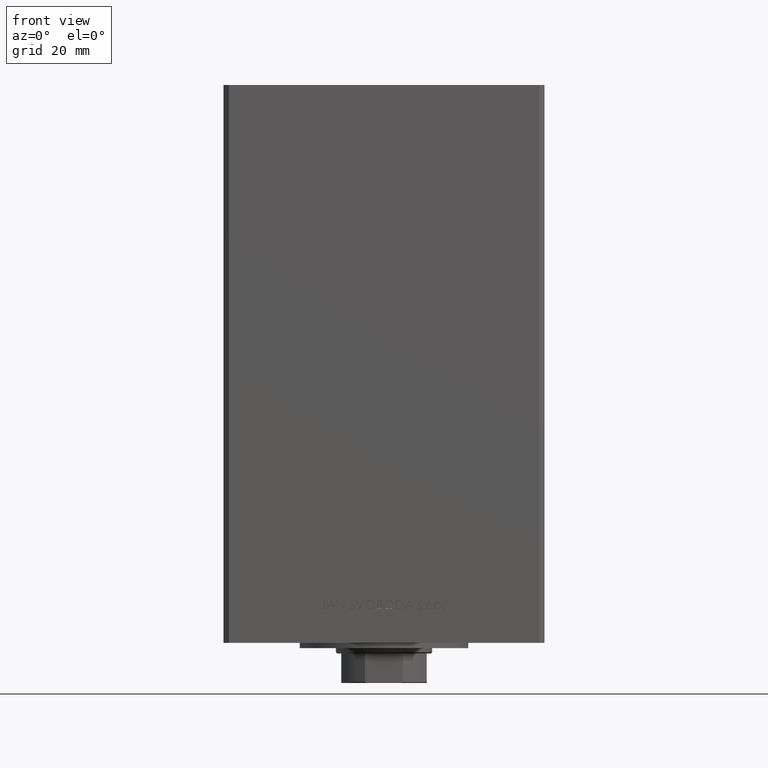
[diagram: clean part render]
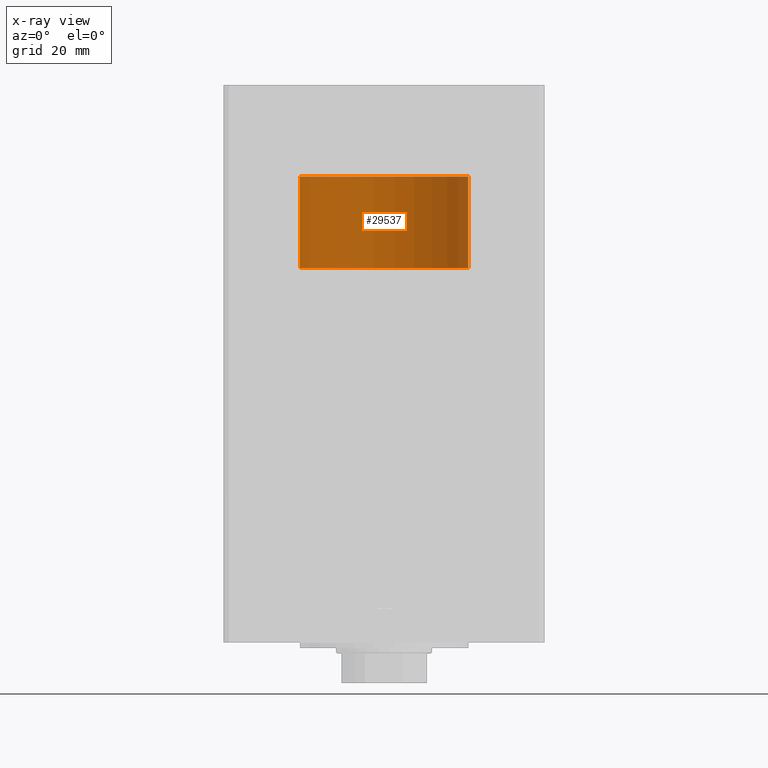
[diagram: x-ray — body ghosted, one internal face saturated and labeled with its STEP entity id]
A machine part, front view, then the same camera in x-ray: the body is ghosted and one INTERNAL B-rep face — a face not visible from any outside direction — is saturated and labeled: STEP entity #29537.
In plain terms, the highlighted cylindrical surface (partial cylindrical patch) has radius 31.5 mm, axis along (0, -0, 1).
Its self-contained STEP definition (entity closure, byte-faithful):
#123 = VECTOR ( 'NONE', #1703, 1000.000000000000000 ) ;
#1506 = CARTESIAN_POINT ( 'NONE',  ( 0.000000000000000000, 0.000000000000000000, 34.25000000000000000 ) ) ;
#1703 = DIRECTION ( 'NONE',  ( -0.000000000000000000, -0.000000000000000000, -1.000000000000000000 ) ) ;
#2033 = CARTESIAN_POINT ( 'NONE',  ( 0.000000000000000000, 0.000000000000000000, 34.25000000000000000 ) ) ;
#3207 = VECTOR ( 'NONE', #44884, 1000.000000000000000 ) ;
#4441 = AXIS2_PLACEMENT_3D ( 'NONE', #2033, #47517, #13478 ) ;
#4586 = AXIS2_PLACEMENT_3D ( 'NONE', #1506, #20659, #35800 ) ;
#5429 = LINE ( 'NONE', #43193, #123 ) ;
#5704 = CIRCLE ( 'NONE', #39040, 31.50000000000000000 ) ;
#6985 = EDGE_CURVE ( 'NONE', #39397, #19899, #26282, .T. ) ;
#7752 = CARTESIAN_POINT ( 'NONE',  ( 0.000000000000000000, 0.000000000000000000, 0.000000000000000000 ) ) ;
#8987 = EDGE_CURVE ( 'NONE', #19703, #31123, #5429, .T. ) ;
#10481 = EDGE_CURVE ( 'NONE', #31123, #19899, #5704, .T. ) ;
#13478 = DIRECTION ( 'NONE',  ( 1.000000000000000000, 0.000000000000000000, 0.000000000000000000 ) ) ;
#14592 = CARTESIAN_POINT ( 'NONE',  ( -31.50000000000000000, 0.000000000000000000, 34.25000000000000000 ) ) ;
#19428 = DIRECTION ( 'NONE',  ( 1.000000000000000000, 0.000000000000000000, 0.000000000000000000 ) ) ;
#19703 = VERTEX_POINT ( 'NONE', #27676 ) ;
#19899 = VERTEX_POINT ( 'NONE', #41281 ) ;
#20659 = DIRECTION ( 'NONE',  ( -0.000000000000000000, -0.000000000000000000, -1.000000000000000000 ) ) ;
#24388 = FACE_OUTER_BOUND ( 'NONE', #27453, .T. ) ;
#24544 = EDGE_CURVE ( 'NONE', #19703, #39397, #28272, .T. ) ;
#26282 = LINE ( 'NONE', #14592, #3207 ) ;
#27453 = EDGE_LOOP ( 'NONE', ( #41196, #48329, #43660, #28176 ) ) ;
#27676 = CARTESIAN_POINT ( 'NONE',  ( 31.50000000000000000, 3.857637417314162689E-15, 34.25000000000000000 ) ) ;
#28176 = ORIENTED_EDGE ( 'NONE', *, *, #6985, .F. ) ;
#28272 = CIRCLE ( 'NONE', #4441, 31.50000000000000000 ) ;
#29537 = ADVANCED_FACE ( 'NONE', ( #24388 ), #35554, .T. ) ;
#31123 = VERTEX_POINT ( 'NONE', #41371 ) ;
#35554 = CYLINDRICAL_SURFACE ( 'NONE', #4586, 31.50000000000000000 ) ;
#35800 = DIRECTION ( 'NONE',  ( -1.000000000000000000, 0.000000000000000000, 0.000000000000000000 ) ) ;
#36858 = CARTESIAN_POINT ( 'NONE',  ( -31.50000000000000000, 0.000000000000000000, 34.25000000000000000 ) ) ;
#39040 = AXIS2_PLACEMENT_3D ( 'NONE', #7752, #48748, #19428 ) ;
#39397 = VERTEX_POINT ( 'NONE', #36858 ) ;
#41196 = ORIENTED_EDGE ( 'NONE', *, *, #24544, .F. ) ;
#41281 = CARTESIAN_POINT ( 'NONE',  ( -31.50000000000000000, 0.000000000000000000, 0.000000000000000000 ) ) ;
#41371 = CARTESIAN_POINT ( 'NONE',  ( 31.50000000000000000, 3.857637417314162689E-15, 0.000000000000000000 ) ) ;
#43193 = CARTESIAN_POINT ( 'NONE',  ( 31.50000000000000000, 3.857637417314162689E-15, 34.25000000000000000 ) ) ;
#43660 = ORIENTED_EDGE ( 'NONE', *, *, #10481, .T. ) ;
#44884 = DIRECTION ( 'NONE',  ( -0.000000000000000000, -0.000000000000000000, -1.000000000000000000 ) ) ;
#47517 = DIRECTION ( 'NONE',  ( 0.000000000000000000, 0.000000000000000000, 1.000000000000000000 ) ) ;
#48329 = ORIENTED_EDGE ( 'NONE', *, *, #8987, .T. ) ;
#48748 = DIRECTION ( 'NONE',  ( 0.000000000000000000, 0.000000000000000000, 1.000000000000000000 ) ) ;